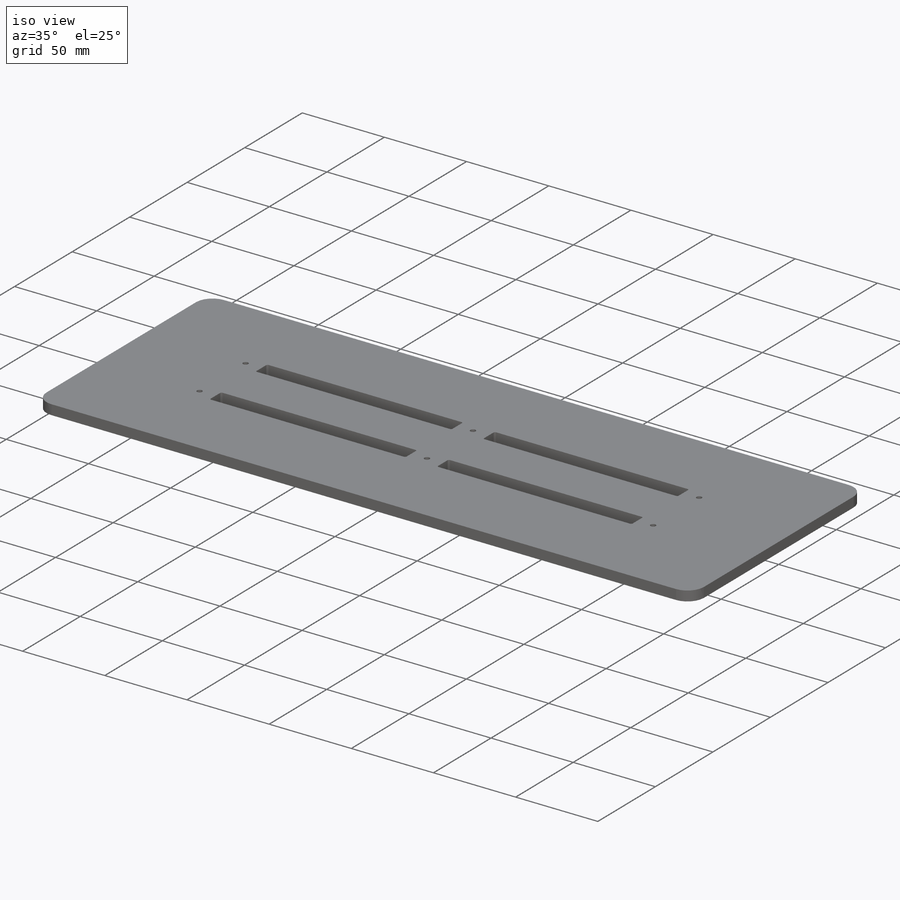
[diagram: iso view]
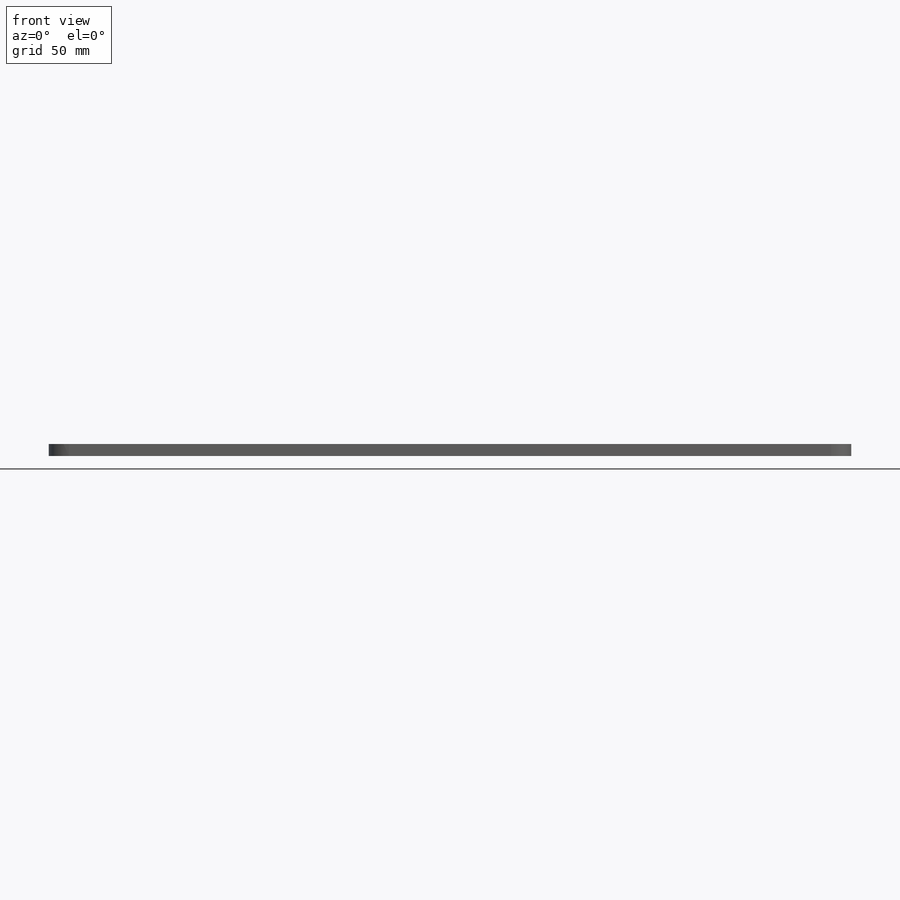
[diagram: front view]
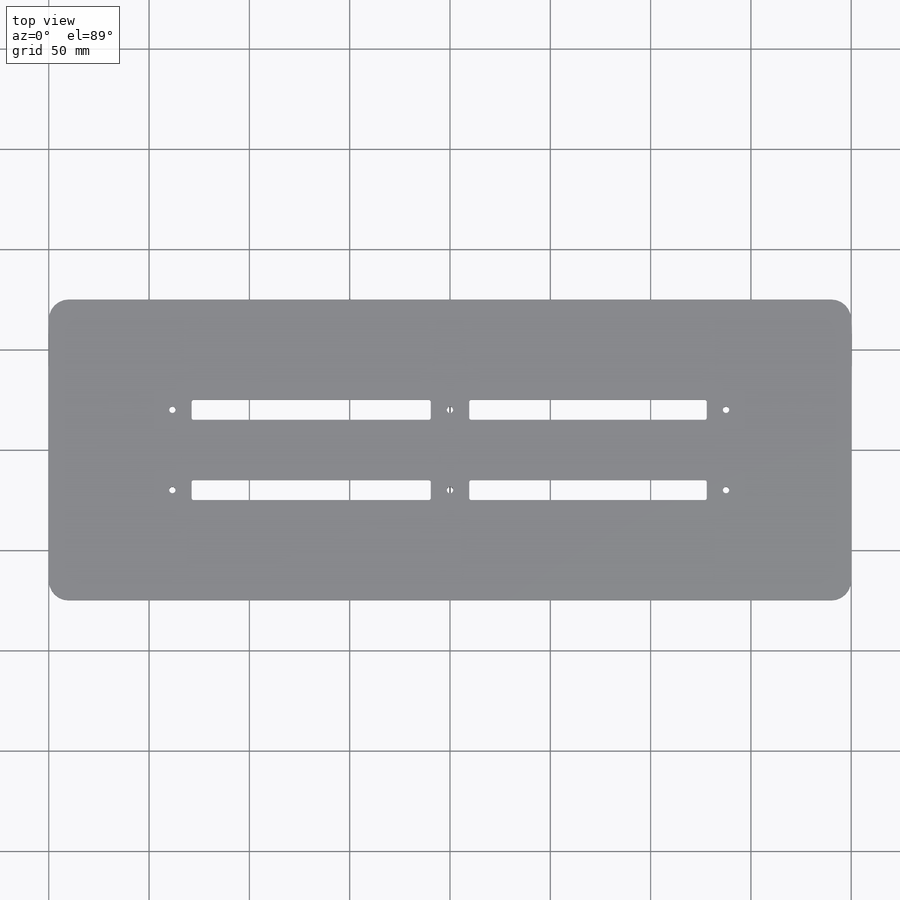
[diagram: top view]
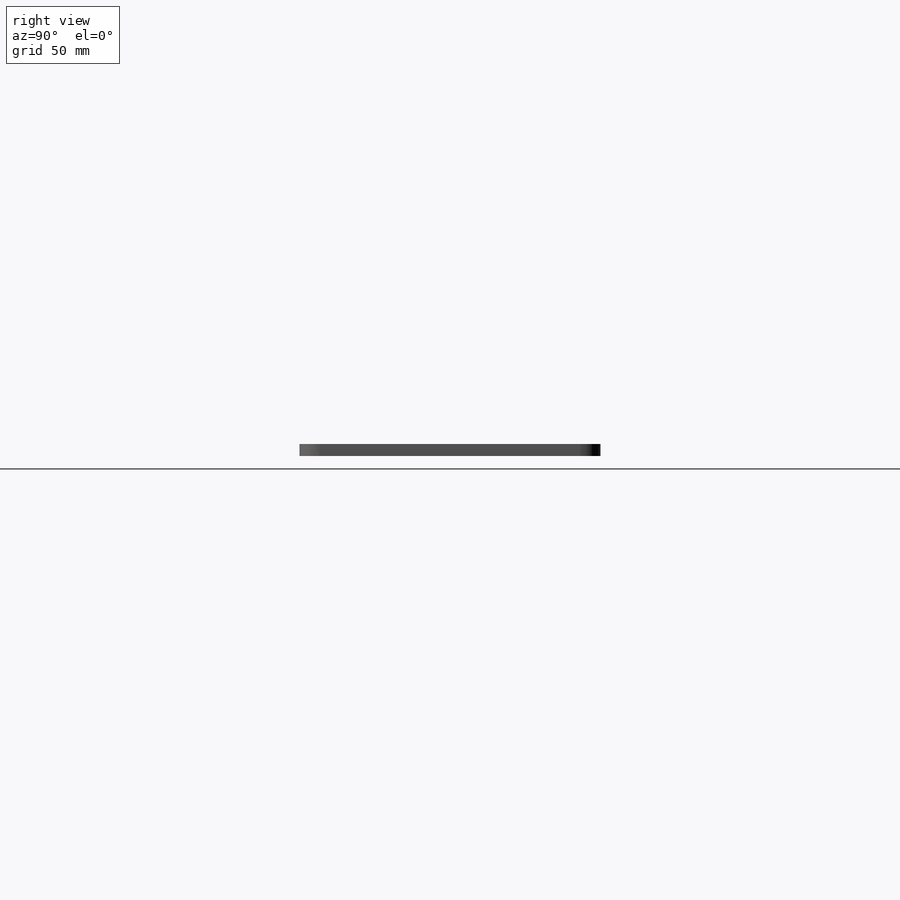
[diagram: right view]
SOLIDWORKS PART (.sldprt)
format: sldprt  version: not decoded by parser v0  size: 256,512 bytes
history: native  units: mm
features: plane x3, sketch x2, fillet x2, material x1, extrude x1, cut_extrude x1 (+10 scaffold rows collapsed)
feature tree (20):
  scaffold x10  (default folders/planes/origin — collapsed)
  material  "Malzeme <belirli değil>"
  plane  "Ön Düzlem"
  plane  "Üst Düzlem"
  plane  "Sağ Düzlem"
  sketch  "Çizim1"  dims[c1.D1=400.0mm c1.D2=150.0mm c1.D3=15.0mm c1.D4=19.2mm c1.D5=10.0mm c1.D6=118.29mm c1.D7=19.2mm c1.D8=119.08mm c1.D9=19.2mm c1.D10=138.38mm c2.D8=138.38mm c2.D6=137.59mm c2.D10=118.39mm c2.D11=119.18mm]
  extrude  "Yükseklik-Ekstrüzyon1"  Depth=6mm
  fillet  "Radyus1"  Radius=10mm
  fillet  "Radyus2"  Radius=1mm
  sketch  "Çizim2"  dims[c1.D4=3.15mm c1.D1=138.38mm c1.D2=137.59mm c2.D1=138.38mm c2.D2=20.0mm c2.D3=137.59mm]
  cut_extrude  "Kes-Ekstrüzyon1"  [1 undecoded]
decode coverage: 5 of 6 modeling features carry decoded parameters
note: 1 parameter value undecoded
note: suppression state not decoded; provenance and decode notes live in map.json
